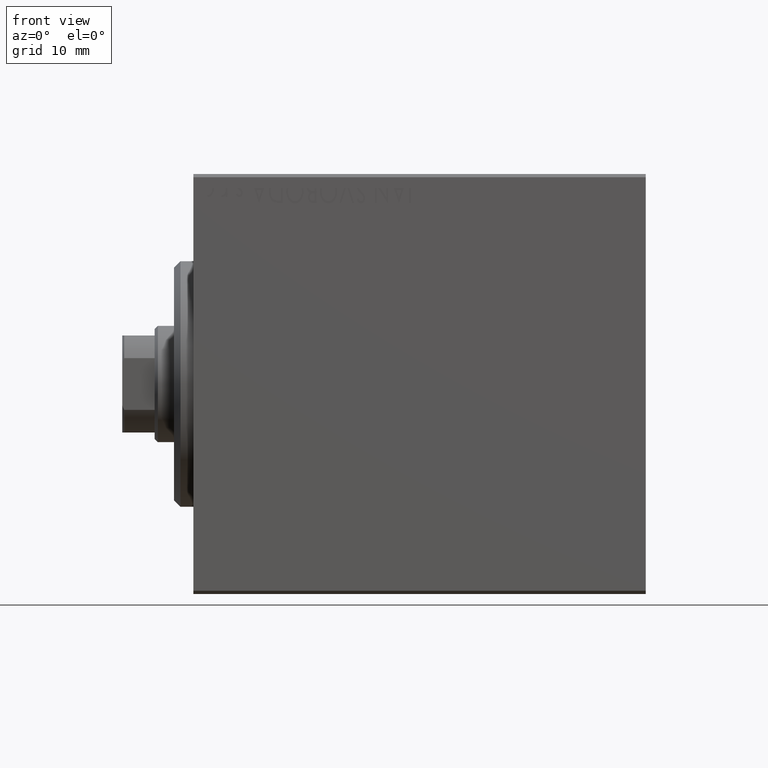
[diagram: clean part render]
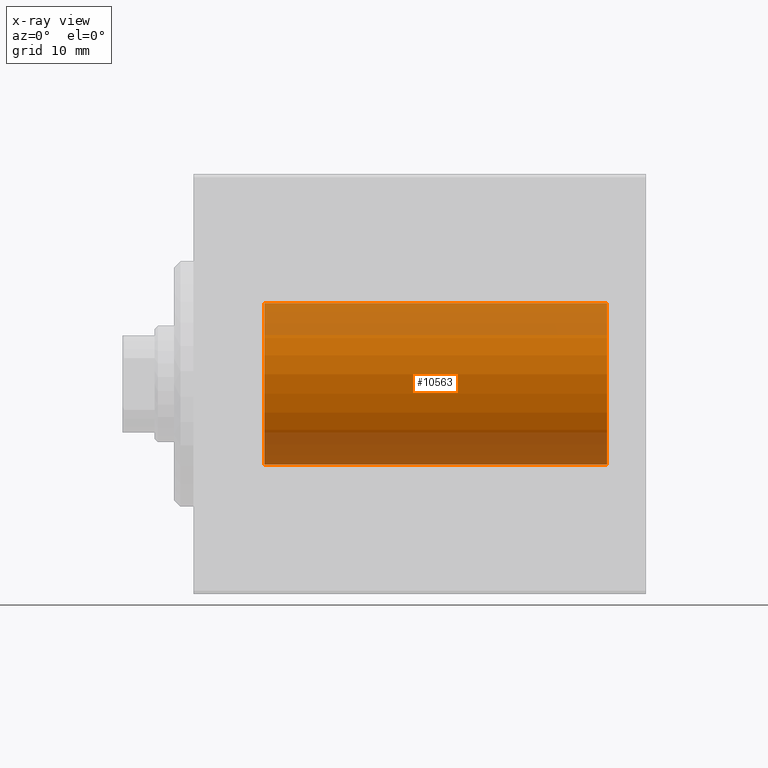
[diagram: x-ray — body ghosted, one internal face saturated and labeled with its STEP entity id]
A machine part, front view, then the same camera in x-ray: the body is ghosted and one INTERNAL B-rep face — a face not visible from any outside direction — is saturated and labeled: STEP entity #10563.
In plain terms, the highlighted cylindrical surface (partial cylindrical patch) has radius 12.5 mm, axis along (-1, -0, -0).
Its self-contained STEP definition (entity closure, byte-faithful):
#1343 = CARTESIAN_POINT ( 'NONE',  ( 64.00000000000000000, 0.000000000000000000, 0.000000000000000000 ) ) ;
#1657 = LINE ( 'NONE', #39642, #32812 ) ;
#6591 = LINE ( 'NONE', #30040, #40378 ) ;
#7199 = DIRECTION ( 'NONE',  ( 0.000000000000000000, 0.000000000000000000, 1.000000000000000000 ) ) ;
#7705 = CARTESIAN_POINT ( 'NONE',  ( 10.99999999999999645, 0.000000000000000000, 12.50000000000000000 ) ) ;
#8970 = ORIENTED_EDGE ( 'NONE', *, *, #30328, .F. ) ;
#9467 = DIRECTION ( 'NONE',  ( -1.000000000000000000, 0.000000000000000000, 0.000000000000000000 ) ) ;
#10563 = ADVANCED_FACE ( 'NONE', ( #35742 ), #18749, .F. ) ;
#11168 = CARTESIAN_POINT ( 'NONE',  ( 64.00000000000000000, 0.000000000000000000, 12.50000000000000000 ) ) ;
#11634 = VERTEX_POINT ( 'NONE', #7705 ) ;
#13902 = VERTEX_POINT ( 'NONE', #25776 ) ;
#14000 = EDGE_LOOP ( 'NONE', ( #32964, #25715, #23657, #8970 ) ) ;
#17151 = AXIS2_PLACEMENT_3D ( 'NONE', #1343, #28601, #25469 ) ;
#17466 = DIRECTION ( 'NONE',  ( -1.000000000000000000, 0.000000000000000000, 0.000000000000000000 ) ) ;
#18659 = CARTESIAN_POINT ( 'NONE',  ( 10.99999999999999645, 1.530808498934191521E-15, -12.50000000000000000 ) ) ;
#18749 = CYLINDRICAL_SURFACE ( 'NONE', #17151, 12.50000000000000000 ) ;
#19730 = DIRECTION ( 'NONE',  ( 0.000000000000000000, 0.000000000000000000, 1.000000000000000000 ) ) ;
#21132 = EDGE_CURVE ( 'NONE', #13902, #35660, #26705, .T. ) ;
#22510 = EDGE_CURVE ( 'NONE', #41785, #11634, #40297, .T. ) ;
#23657 = ORIENTED_EDGE ( 'NONE', *, *, #22510, .T. ) ;
#24179 = CARTESIAN_POINT ( 'NONE',  ( 10.99999999999999645, 0.000000000000000000, 0.000000000000000000 ) ) ;
#25469 = DIRECTION ( 'NONE',  ( 0.000000000000000000, 0.000000000000000000, 1.000000000000000000 ) ) ;
#25715 = ORIENTED_EDGE ( 'NONE', *, *, #25836, .T. ) ;
#25776 = CARTESIAN_POINT ( 'NONE',  ( 64.00000000000000000, 1.530808498934191521E-15, -12.50000000000000000 ) ) ;
#25836 = EDGE_CURVE ( 'NONE', #13902, #41785, #6591, .T. ) ;
#26700 = DIRECTION ( 'NONE',  ( -1.000000000000000000, -0.000000000000000000, -0.000000000000000000 ) ) ;
#26705 = CIRCLE ( 'NONE', #31710, 12.50000000000000000 ) ;
#28601 = DIRECTION ( 'NONE',  ( -1.000000000000000000, -0.000000000000000000, -0.000000000000000000 ) ) ;
#30040 = CARTESIAN_POINT ( 'NONE',  ( 64.00000000000000000, 1.530808498934191521E-15, -12.50000000000000000 ) ) ;
#30328 = EDGE_CURVE ( 'NONE', #35660, #11634, #1657, .T. ) ;
#31006 = AXIS2_PLACEMENT_3D ( 'NONE', #24179, #17466, #7199 ) ;
#31710 = AXIS2_PLACEMENT_3D ( 'NONE', #40093, #9467, #19730 ) ;
#32812 = VECTOR ( 'NONE', #39188, 1000.000000000000000 ) ;
#32964 = ORIENTED_EDGE ( 'NONE', *, *, #21132, .F. ) ;
#35660 = VERTEX_POINT ( 'NONE', #11168 ) ;
#35742 = FACE_OUTER_BOUND ( 'NONE', #14000, .T. ) ;
#39188 = DIRECTION ( 'NONE',  ( -1.000000000000000000, -0.000000000000000000, -0.000000000000000000 ) ) ;
#39642 = CARTESIAN_POINT ( 'NONE',  ( 64.00000000000000000, 0.000000000000000000, 12.50000000000000000 ) ) ;
#40093 = CARTESIAN_POINT ( 'NONE',  ( 64.00000000000000000, 0.000000000000000000, 0.000000000000000000 ) ) ;
#40297 = CIRCLE ( 'NONE', #31006, 12.50000000000000000 ) ;
#40378 = VECTOR ( 'NONE', #26700, 1000.000000000000000 ) ;
#41785 = VERTEX_POINT ( 'NONE', #18659 ) ;